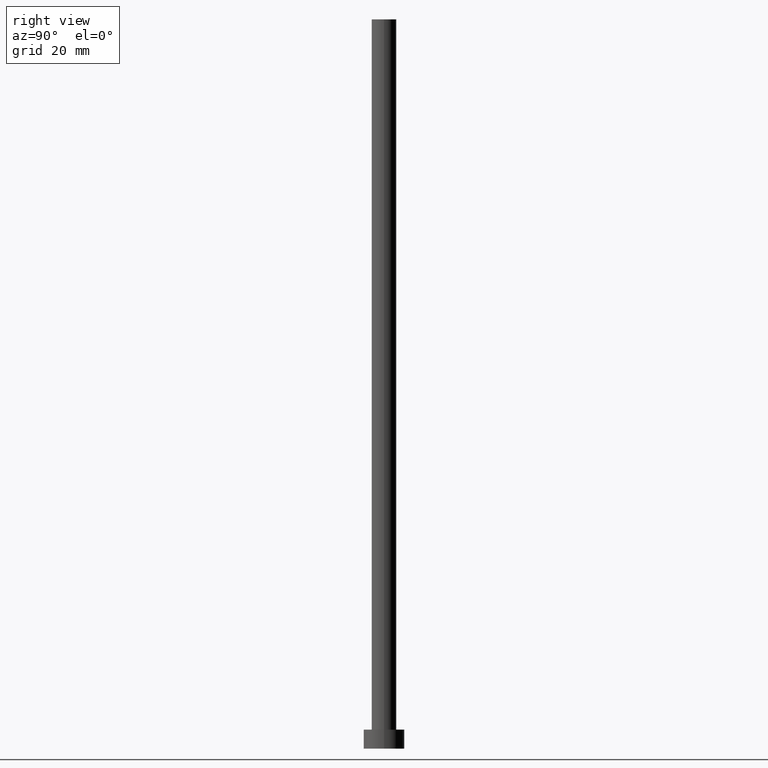
[diagram: clean part render]
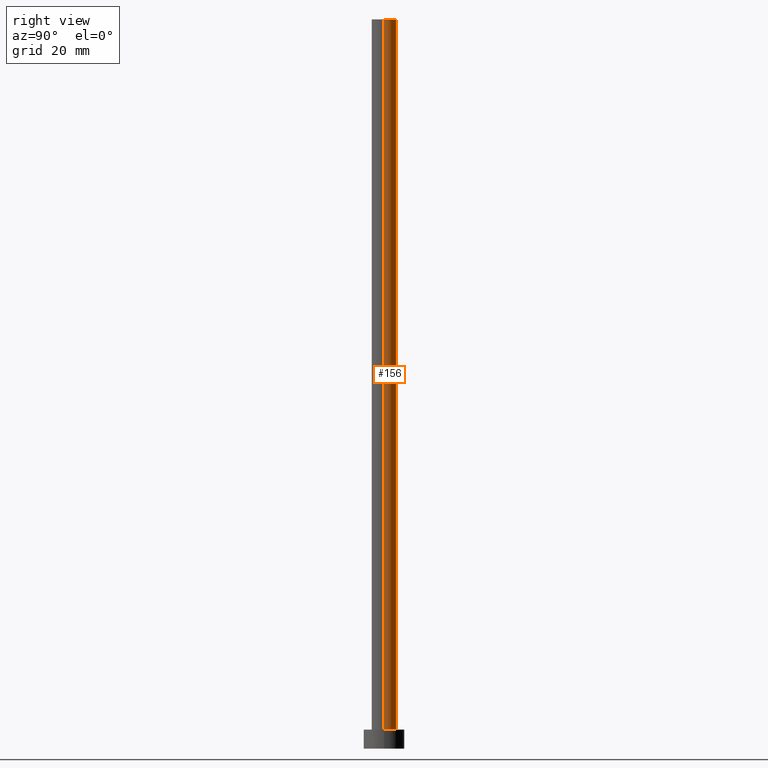
[diagram: same view with one face highlighted and labeled with its STEP entity id]
A machine part, right view. The second image highlights one B-rep face of the part: STEP entity #156.
In plain terms, the highlighted cylindrical surface (edge-blend (fillet) strip) has radius 4.25 mm, axis along (-0, -0, -1).
Its self-contained STEP definition (entity closure, byte-faithful):
#4 = DIRECTION ( 'NONE',  ( -1.000000000000000000, 0.000000000000000000, 0.000000000000000000 ) ) ;
#10 = CIRCLE ( 'NONE', #191, 4.250000000000000000 ) ;
#14 = CARTESIAN_POINT ( 'NONE',  ( -4.250000000000000000, 0.000000000000000000, 250.0000000000000000 ) ) ;
#15 = ORIENTED_EDGE ( 'NONE', *, *, #25, .F. ) ;
#20 = CARTESIAN_POINT ( 'NONE',  ( 4.250000000000000000, 5.204748896376250699E-16, 250.0000000000000000 ) ) ;
#24 = CARTESIAN_POINT ( 'NONE',  ( 0.000000000000000000, 0.000000000000000000, 6.500000000000000000 ) ) ;
#25 = EDGE_CURVE ( 'NONE', #212, #250, #249, .T. ) ;
#35 = VERTEX_POINT ( 'NONE', #208 ) ;
#36 = DIRECTION ( 'NONE',  ( -0.000000000000000000, -0.000000000000000000, -1.000000000000000000 ) ) ;
#41 = DIRECTION ( 'NONE',  ( 0.000000000000000000, 0.000000000000000000, 1.000000000000000000 ) ) ;
#43 = CARTESIAN_POINT ( 'NONE',  ( 0.000000000000000000, 0.000000000000000000, 250.0000000000000000 ) ) ;
#52 = CARTESIAN_POINT ( 'NONE',  ( 4.250000000000000000, 5.204748896376250699E-16, 250.0000000000000000 ) ) ;
#58 = DIRECTION ( 'NONE',  ( 1.000000000000000000, 0.000000000000000000, 0.000000000000000000 ) ) ;
#69 = EDGE_LOOP ( 'NONE', ( #186, #171, #150, #15 ) ) ;
#73 = EDGE_CURVE ( 'NONE', #130, #35, #187, .T. ) ;
#80 = CARTESIAN_POINT ( 'NONE',  ( -4.250000000000000000, 0.000000000000000000, 250.0000000000000000 ) ) ;
#81 = VECTOR ( 'NONE', #36, 1000.000000000000000 ) ;
#109 = DIRECTION ( 'NONE',  ( -0.000000000000000000, -0.000000000000000000, -1.000000000000000000 ) ) ;
#122 = CARTESIAN_POINT ( 'NONE',  ( -4.250000000000000000, 0.000000000000000000, 6.500000000000000000 ) ) ;
#130 = VERTEX_POINT ( 'NONE', #20 ) ;
#137 = DIRECTION ( 'NONE',  ( 1.000000000000000000, 0.000000000000000000, 0.000000000000000000 ) ) ;
#150 = ORIENTED_EDGE ( 'NONE', *, *, #205, .T. ) ;
#154 = CIRCLE ( 'NONE', #246, 4.250000000000000000 ) ;
#156 = ADVANCED_FACE ( 'NONE', ( #220 ), #235, .T. ) ;
#171 = ORIENTED_EDGE ( 'NONE', *, *, #73, .T. ) ;
#178 = CARTESIAN_POINT ( 'NONE',  ( 0.000000000000000000, 0.000000000000000000, 250.0000000000000000 ) ) ;
#181 = DIRECTION ( 'NONE',  ( 0.000000000000000000, 0.000000000000000000, 1.000000000000000000 ) ) ;
#186 = ORIENTED_EDGE ( 'NONE', *, *, #194, .F. ) ;
#187 = LINE ( 'NONE', #52, #228 ) ;
#191 = AXIS2_PLACEMENT_3D ( 'NONE', #24, #181, #58 ) ;
#194 = EDGE_CURVE ( 'NONE', #130, #212, #154, .T. ) ;
#205 = EDGE_CURVE ( 'NONE', #35, #250, #10, .T. ) ;
#208 = CARTESIAN_POINT ( 'NONE',  ( 4.250000000000000000, 5.204748896376250699E-16, 6.500000000000000000 ) ) ;
#212 = VERTEX_POINT ( 'NONE', #80 ) ;
#213 = AXIS2_PLACEMENT_3D ( 'NONE', #43, #216, #4 ) ;
#216 = DIRECTION ( 'NONE',  ( -0.000000000000000000, -0.000000000000000000, -1.000000000000000000 ) ) ;
#220 = FACE_OUTER_BOUND ( 'NONE', #69, .T. ) ;
#228 = VECTOR ( 'NONE', #109, 1000.000000000000000 ) ;
#235 = CYLINDRICAL_SURFACE ( 'NONE', #213, 4.250000000000000000 ) ;
#246 = AXIS2_PLACEMENT_3D ( 'NONE', #178, #41, #137 ) ;
#249 = LINE ( 'NONE', #14, #81 ) ;
#250 = VERTEX_POINT ( 'NONE', #122 ) ;